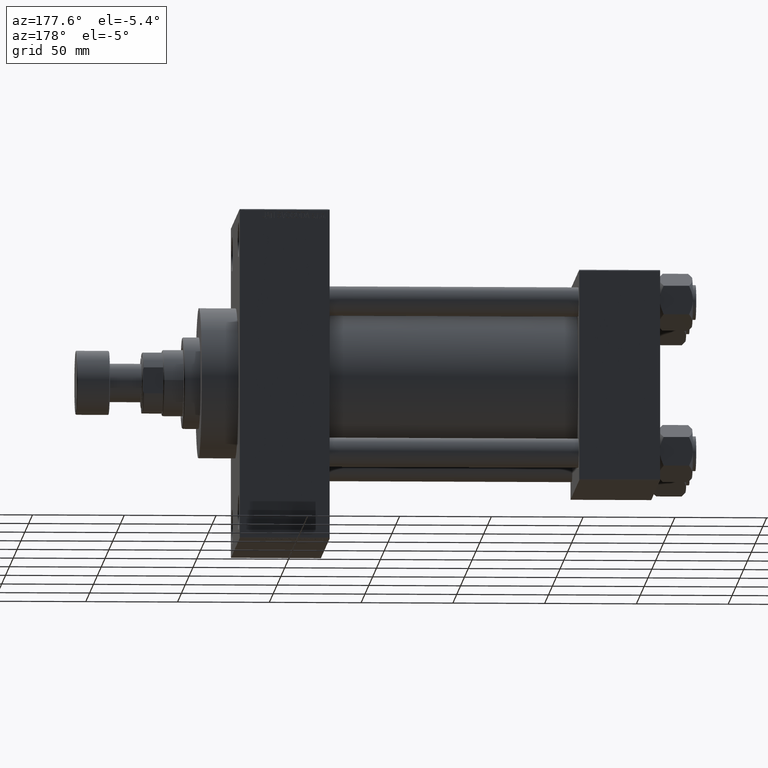
[diagram: clean part render]
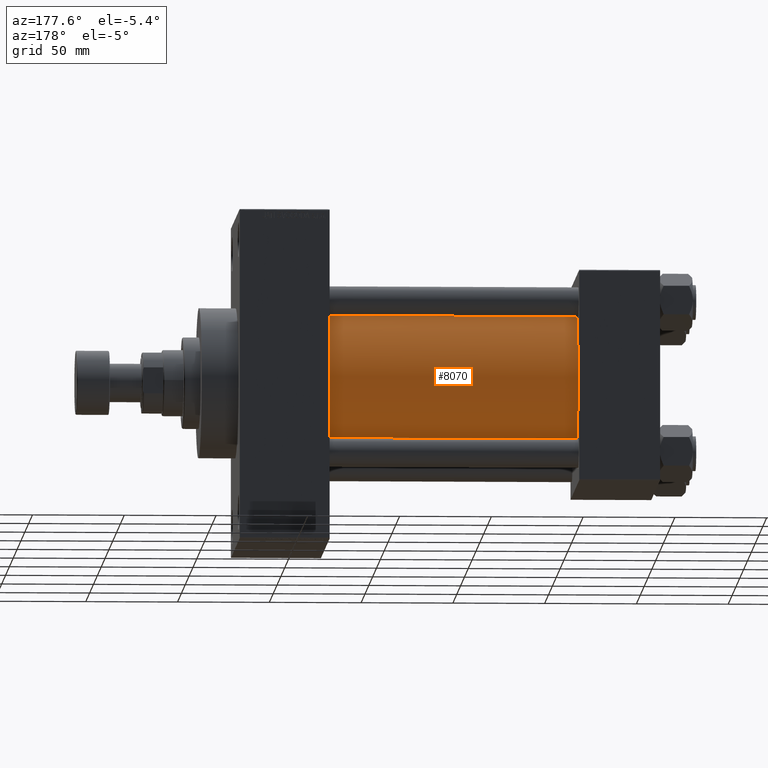
[diagram: same view with one face highlighted and labeled with its STEP entity id]
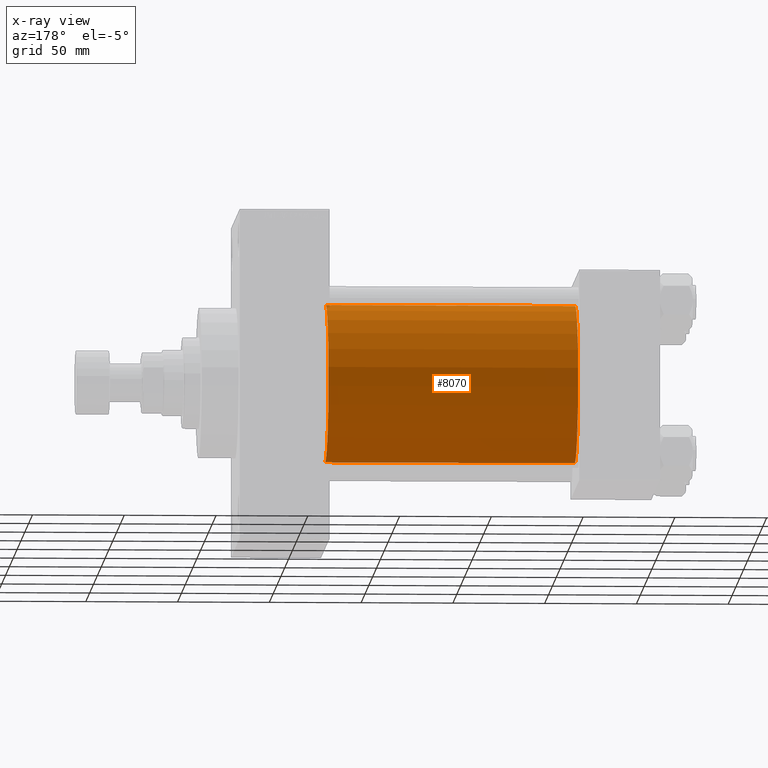
[diagram: x-ray of the same camera — body ghosted, the highlighted face saturated]
A machine part, auxiliary view. The second image highlights one B-rep face of the part: STEP entity #8070.
The next image is the same camera in x-ray: the body ghosted, the highlighted face saturated — about 1% of this face is hidden behind the body in this view.
In plain terms, the highlighted cylindrical surface (partial cylindrical patch) has radius 43 mm, axis along (-1, -0, -0).
Its self-contained STEP definition (entity closure, byte-faithful):
#2479 = LINE ( 'NONE', #47030, #25751 ) ;
#4976 = CARTESIAN_POINT ( 'NONE',  ( 180.0000000000000000, -2.602085213965210642E-15, 0.000000000000000000 ) ) ;
#5928 = FACE_OUTER_BOUND ( 'NONE', #35967, .T. ) ;
#7706 = VERTEX_POINT ( 'NONE', #26676 ) ;
#8070 = ADVANCED_FACE ( 'NONE', ( #5928 ), #39025, .T. ) ;
#8358 = VERTEX_POINT ( 'NONE', #28926 ) ;
#9561 = CARTESIAN_POINT ( 'NONE',  ( 180.0000000000000000, -2.602085213965210642E-15, 43.00000000000000000 ) ) ;
#10195 = CIRCLE ( 'NONE', #15600, 43.00000000000000000 ) ;
#10874 = CIRCLE ( 'NONE', #31086, 43.00000000000000000 ) ;
#11245 = VECTOR ( 'NONE', #18988, 1000.000000000000000 ) ;
#13665 = DIRECTION ( 'NONE',  ( -1.000000000000000000, -0.000000000000000000, -0.000000000000000000 ) ) ;
#15600 = AXIS2_PLACEMENT_3D ( 'NONE', #4976, #45623, #19093 ) ;
#16871 = DIRECTION ( 'NONE',  ( 0.000000000000000000, 0.000000000000000000, 1.000000000000000000 ) ) ;
#18988 = DIRECTION ( 'NONE',  ( -1.000000000000000000, -0.000000000000000000, -0.000000000000000000 ) ) ;
#18991 = ORIENTED_EDGE ( 'NONE', *, *, #36162, .F. ) ;
#19093 = DIRECTION ( 'NONE',  ( 0.000000000000000000, 0.000000000000000000, -1.000000000000000000 ) ) ;
#23774 = VERTEX_POINT ( 'NONE', #9561 ) ;
#24170 = DIRECTION ( 'NONE',  ( 0.000000000000000000, 0.000000000000000000, 1.000000000000000000 ) ) ;
#25159 = CARTESIAN_POINT ( 'NONE',  ( 180.0000000000000000, -2.602085213965210642E-15, 43.00000000000000000 ) ) ;
#25168 = EDGE_CURVE ( 'NONE', #8358, #32296, #2479, .T. ) ;
#25751 = VECTOR ( 'NONE', #13665, 1000.000000000000000 ) ;
#26676 = CARTESIAN_POINT ( 'NONE',  ( 43.99999999999998579, -2.602085213965210642E-15, 43.00000000000000000 ) ) ;
#27827 = DIRECTION ( 'NONE',  ( 1.000000000000000000, -0.000000000000000000, 0.000000000000000000 ) ) ;
#28926 = CARTESIAN_POINT ( 'NONE',  ( 180.0000000000000000, 2.663896022368408223E-15, -43.00000000000000000 ) ) ;
#29847 = EDGE_CURVE ( 'NONE', #23774, #7706, #37717, .T. ) ;
#31086 = AXIS2_PLACEMENT_3D ( 'NONE', #46340, #27827, #24170 ) ;
#32296 = VERTEX_POINT ( 'NONE', #32566 ) ;
#32566 = CARTESIAN_POINT ( 'NONE',  ( 43.99999999999998579, 2.663896022368408223E-15, -43.00000000000000000 ) ) ;
#33887 = ORIENTED_EDGE ( 'NONE', *, *, #25168, .T. ) ;
#34005 = EDGE_CURVE ( 'NONE', #32296, #7706, #10874, .T. ) ;
#35280 = ORIENTED_EDGE ( 'NONE', *, *, #34005, .T. ) ;
#35967 = EDGE_LOOP ( 'NONE', ( #18991, #33887, #35280, #40638 ) ) ;
#36162 = EDGE_CURVE ( 'NONE', #8358, #23774, #10195, .T. ) ;
#37717 = LINE ( 'NONE', #25159, #11245 ) ;
#39025 = CYLINDRICAL_SURFACE ( 'NONE', #39447, 43.00000000000000000 ) ;
#39272 = DIRECTION ( 'NONE',  ( -1.000000000000000000, -0.000000000000000000, -0.000000000000000000 ) ) ;
#39447 = AXIS2_PLACEMENT_3D ( 'NONE', #46838, #39272, #16871 ) ;
#40638 = ORIENTED_EDGE ( 'NONE', *, *, #29847, .F. ) ;
#45623 = DIRECTION ( 'NONE',  ( 1.000000000000000000, 0.000000000000000000, 0.000000000000000000 ) ) ;
#46340 = CARTESIAN_POINT ( 'NONE',  ( 43.99999999999998579, -2.602085213965210642E-15, 0.000000000000000000 ) ) ;
#46838 = CARTESIAN_POINT ( 'NONE',  ( 180.0000000000000000, -2.602085213965210642E-15, 0.000000000000000000 ) ) ;
#47030 = CARTESIAN_POINT ( 'NONE',  ( 180.0000000000000000, 2.663896022368408223E-15, -43.00000000000000000 ) ) ;